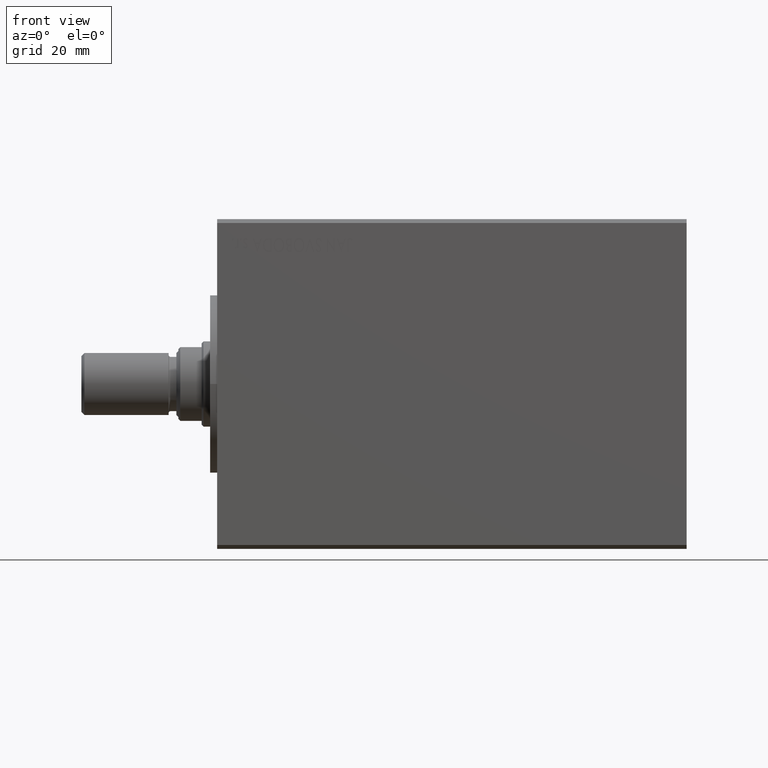
[diagram: clean part render]
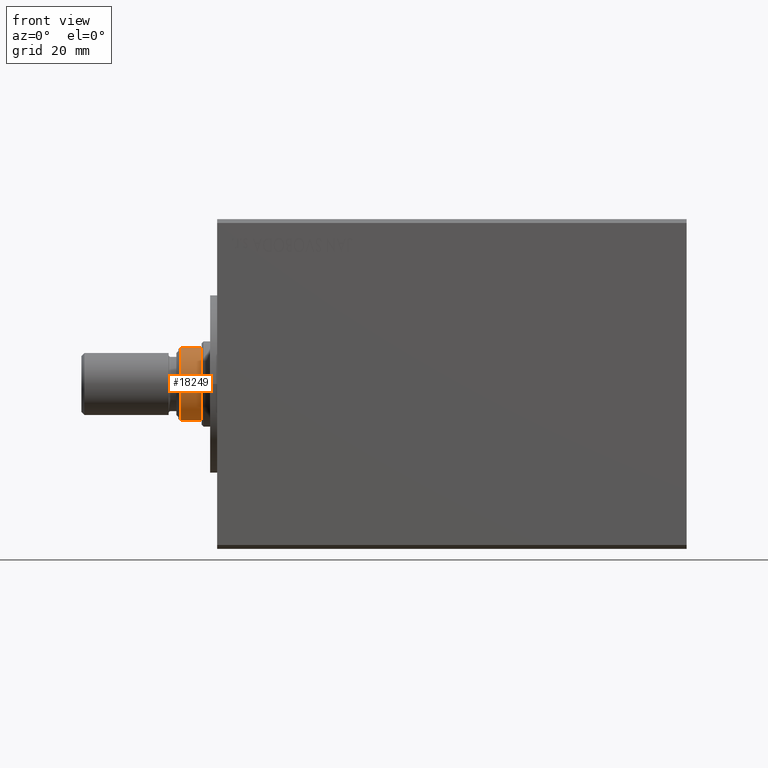
[diagram: same view with one face highlighted and labeled with its STEP entity id]
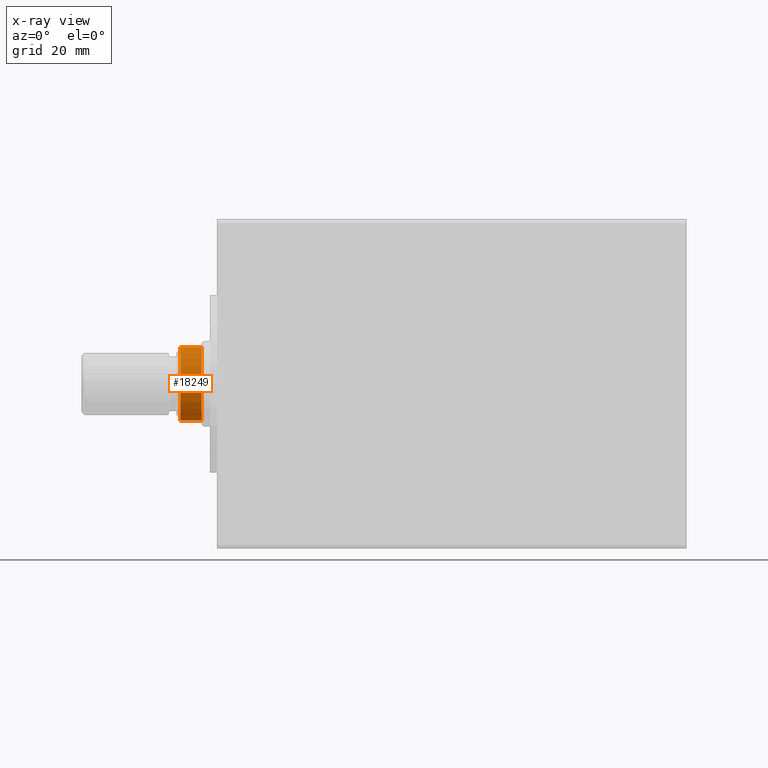
[diagram: x-ray of the same camera — body ghosted, the highlighted face saturated]
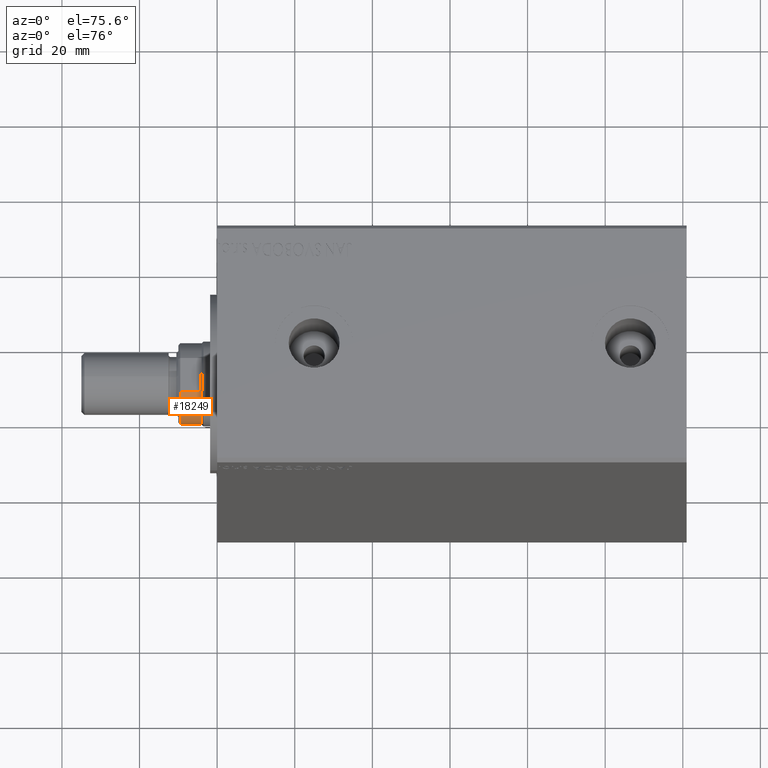
[diagram: same view with one face highlighted and labeled with its STEP entity id]
A machine part, front view. The second image highlights one B-rep face of the part: STEP entity #18249.
The next image is the same camera in x-ray: the body ghosted, the highlighted face saturated — about 0% of this face is hidden behind the body in this view.
A second angle (auxiliary view) of the same face is appended — the face is thin or edge-on in the first view.
In plain terms, the highlighted cylindrical surface (partial cylindrical patch) has radius 10.5 mm, axis along (1, -0, -0).
Its self-contained STEP definition (entity closure, byte-faithful):
#2120 = DIRECTION ( 'NONE',  ( 0.000000000000000000, 0.000000000000000000, 1.000000000000000000 ) ) ;
#2413 = AXIS2_PLACEMENT_3D ( 'NONE', #43024, #2120, #12471 ) ;
#2516 = AXIS2_PLACEMENT_3D ( 'NONE', #32868, #36013, #39156 ) ;
#2595 = EDGE_LOOP ( 'NONE', ( #9238, #33974, #44246, #40682 ) ) ;
#2965 = VERTEX_POINT ( 'NONE', #27891 ) ;
#4476 = CARTESIAN_POINT ( 'NONE',  ( 9.500000000000000000, -4.472135954999667540, 115.7000000000000171 ) ) ;
#5253 = EDGE_CURVE ( 'NONE', #22261, #2965, #37682, .T. ) ;
#6967 = VERTEX_POINT ( 'NONE', #27058 ) ;
#7598 = DIRECTION ( 'NONE',  ( -1.000000000000000000, 0.000000000000000000, 0.000000000000000000 ) ) ;
#8512 = LINE ( 'NONE', #4476, #43627 ) ;
#9238 = ORIENTED_EDGE ( 'NONE', *, *, #35562, .F. ) ;
#10759 = DIRECTION ( 'NONE',  ( -0.000000000000000000, -0.000000000000000000, -1.000000000000000000 ) ) ;
#10851 = CARTESIAN_POINT ( 'NONE',  ( -9.500000000000000000, -4.472135954999667540, 115.7000000000000171 ) ) ;
#11330 = AXIS2_PLACEMENT_3D ( 'NONE', #41541, #10759, #7598 ) ;
#12471 = DIRECTION ( 'NONE',  ( 1.000000000000000000, 0.000000000000000000, 0.000000000000000000 ) ) ;
#18249 = ADVANCED_FACE ( 'NONE', ( #38383 ), #24916, .T. ) ;
#19305 = VERTEX_POINT ( 'NONE', #39489 ) ;
#21151 = VECTOR ( 'NONE', #34879, 1000.000000000000000 ) ;
#22010 = DIRECTION ( 'NONE',  ( -0.000000000000000000, -0.000000000000000000, -1.000000000000000000 ) ) ;
#22261 = VERTEX_POINT ( 'NONE', #28187 ) ;
#24916 = CYLINDRICAL_SURFACE ( 'NONE', #11330, 10.50000000000003730 ) ;
#26095 = CIRCLE ( 'NONE', #2413, 10.50000000000003730 ) ;
#27058 = CARTESIAN_POINT ( 'NONE',  ( 9.500000000000000000, -4.472135954999667540, 109.7000000000000028 ) ) ;
#27891 = CARTESIAN_POINT ( 'NONE',  ( -9.500000000000000000, -4.472135954999667540, 115.2000000000000171 ) ) ;
#28187 = CARTESIAN_POINT ( 'NONE',  ( 9.500000000000000000, -4.472135954999667540, 115.2000000000000171 ) ) ;
#30385 = EDGE_CURVE ( 'NONE', #2965, #19305, #41631, .T. ) ;
#32868 = CARTESIAN_POINT ( 'NONE',  ( 0.000000000000000000, 0.000000000000000000, 115.2000000000000171 ) ) ;
#33974 = ORIENTED_EDGE ( 'NONE', *, *, #5253, .T. ) ;
#34879 = DIRECTION ( 'NONE',  ( -0.000000000000000000, -0.000000000000000000, -1.000000000000000000 ) ) ;
#35562 = EDGE_CURVE ( 'NONE', #22261, #6967, #8512, .T. ) ;
#36013 = DIRECTION ( 'NONE',  ( 0.000000000000000000, 0.000000000000000000, -1.000000000000000000 ) ) ;
#36982 = EDGE_CURVE ( 'NONE', #19305, #6967, #26095, .T. ) ;
#37682 = CIRCLE ( 'NONE', #2516, 10.50000000000003730 ) ;
#38383 = FACE_OUTER_BOUND ( 'NONE', #2595, .T. ) ;
#39156 = DIRECTION ( 'NONE',  ( 1.000000000000000000, 0.000000000000000000, 0.000000000000000000 ) ) ;
#39489 = CARTESIAN_POINT ( 'NONE',  ( -9.500000000000000000, -4.472135954999667540, 109.7000000000000028 ) ) ;
#40682 = ORIENTED_EDGE ( 'NONE', *, *, #36982, .T. ) ;
#41541 = CARTESIAN_POINT ( 'NONE',  ( 0.000000000000000000, 0.000000000000000000, 115.7000000000000171 ) ) ;
#41631 = LINE ( 'NONE', #10851, #21151 ) ;
#43024 = CARTESIAN_POINT ( 'NONE',  ( 0.000000000000000000, 0.000000000000000000, 109.7000000000000028 ) ) ;
#43627 = VECTOR ( 'NONE', #22010, 1000.000000000000000 ) ;
#44246 = ORIENTED_EDGE ( 'NONE', *, *, #30385, .T. ) ;